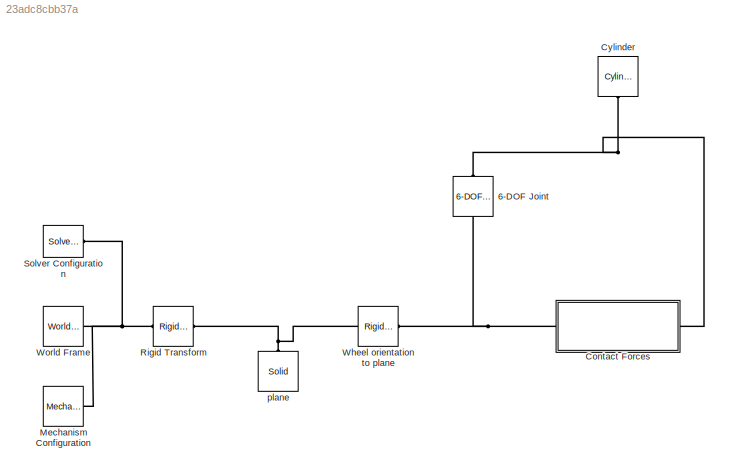
MODEL slx_23adc8cbb37a
KIND model
CONFIG AbsTol = auto
CONFIG EnableMultiTasking = on
CONFIG FixedStep = auto
CONFIG MaxStep = auto
CONFIG MinStep = auto
CONFIG RelTol = 1e-3
CONFIG SampleTimeConstraint = Unconstrained
CONFIG Solver = VariableStepAuto
CONFIG SolverName = VariableStepAuto
CONFIG StartTime = 0.0
CONFIG StopTime = 1
BLOCK [Reference] 6-DOF Joint  REF=sm_lib/Joints/6-DOF Joint
  Ports = [0, 0, 0, 0, 0, 1, 1]
  SourceBlock = sm_lib/Joints/6-DOF Joint
  SourceProductBaseCode = MS
  SourceProductName = Simscape Multibody
  SourceType = 6-DOF Joint
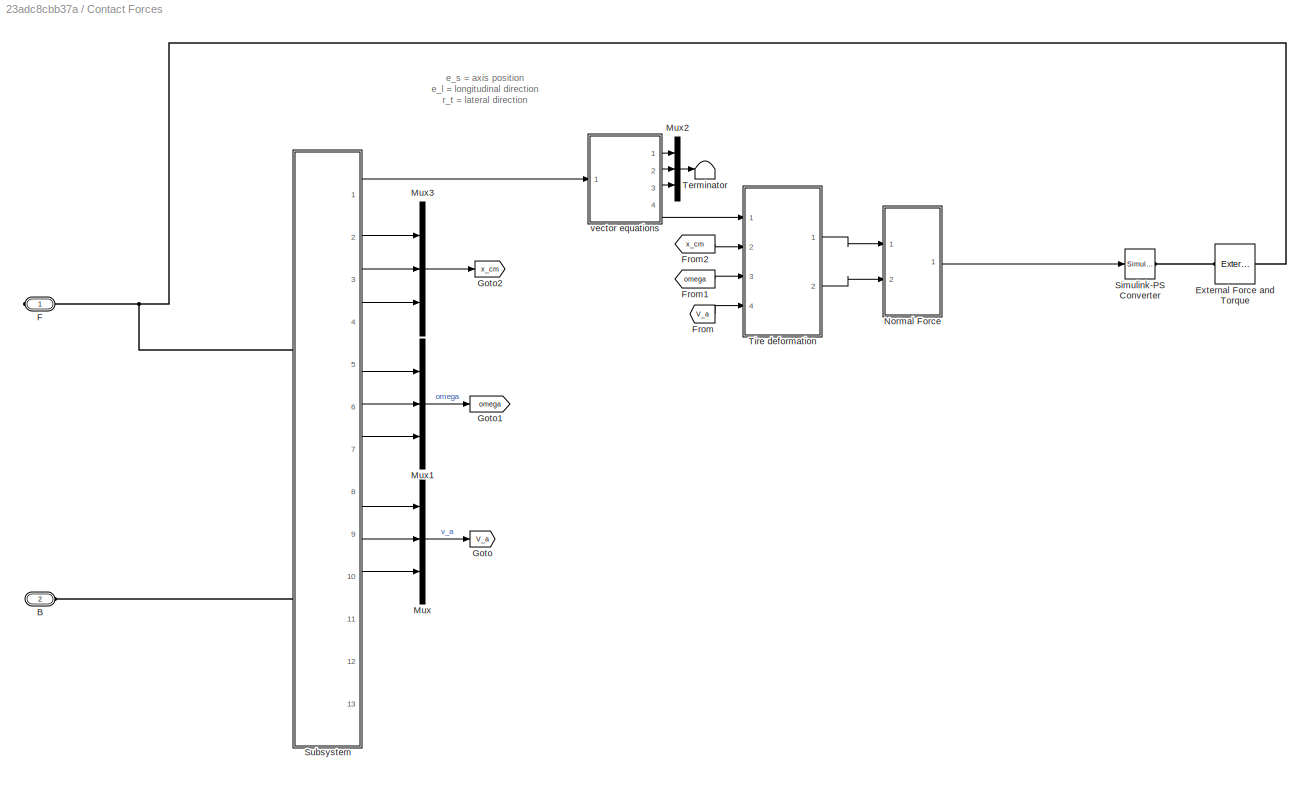
BLOCK [SubSystem] Contact Forces
  Ports = [0, 0, 0, 0, 0, 1, 1]
  RequestExecContextInheritance = off
  Variant = off
BLOCK [PMIOPort] Contact Forces/B
  Port = 2
  Side = Left
BLOCK [Reference] Contact Forces/External Force and Torque  REF=sm_lib/Forces and
Torques/External Force
and Torque
  Ports = [0, 0, 0, 0, 0, 1, 1]
  SourceBlock = sm_lib/Forces and\nTorques/External Force\nand Torque
  SourceProductBaseCode = MS
  SourceProductName = Simscape Multibody
  SourceType = External Force\nand Torque
BLOCK [PMIOPort] Contact Forces/F
  Port = 1
  Side = Right
BLOCK [From] Contact Forces/From
  GotoTag = V_a
BLOCK [From] Contact Forces/From1
  GotoTag = omega
BLOCK [From] Contact Forces/From2
  GotoTag = x_cm
BLOCK [Goto] Contact Forces/Goto
  GotoTag = V_a
BLOCK [Goto] Contact Forces/Goto1
  GotoTag = omega
BLOCK [Goto] Contact Forces/Goto2
  GotoTag = x_cm
BLOCK [Mux] Contact Forces/Mux
  DisplayOption = bar
  Inputs = 3
  Ports = [3, 1]
BLOCK [Mux] Contact Forces/Mux1
  DisplayOption = bar
  Inputs = 3
  Ports = [3, 1]
BLOCK [Mux] Contact Forces/Mux2
  DisplayOption = bar
  Inputs = 3
  Ports = [3, 1]
BLOCK [Mux] Contact Forces/Mux3
  DisplayOption = bar
  Inputs = 3
  Ports = [3, 1]
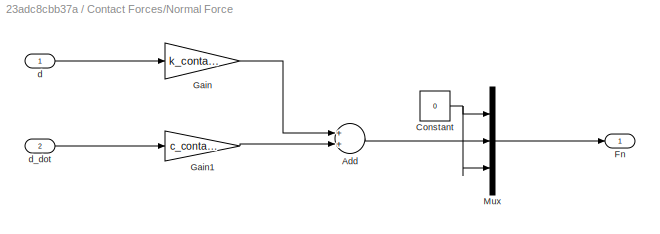
BLOCK [SubSystem] Contact Forces/Normal Force
  Ports = [2, 1]
  RequestExecContextInheritance = off
  Variant = off
BLOCK [Sum] Contact Forces/Normal Force/Add
  InputSameDT = off
  Inputs = 2
  OutDataTypeStr = Inherit: Inherit via internal rule
  Ports = [2, 1]
  SaturateOnIntegerOverflow = off
BLOCK [Constant] Contact Forces/Normal Force/Constant
  Value = 0
BLOCK [Outport] Contact Forces/Normal Force/Fn
  IconDisplay = Port number
BLOCK [Gain] Contact Forces/Normal Force/Gain
  Gain = k_contact
  OutDataTypeStr = Inherit: Inherit via internal rule
  ParamDataTypeStr = Inherit: Inherit via internal rule
  SaturateOnIntegerOverflow = off
BLOCK [Gain] Contact Forces/Normal Force/Gain1
  Gain = c_contact
  OutDataTypeStr = Inherit: Inherit via internal rule
  ParamDataTypeStr = Inherit: Inherit via internal rule
  SaturateOnIntegerOverflow = off
BLOCK [Mux] Contact Forces/Normal Force/Mux
  DisplayOption = bar
  Inputs = 3
  Ports = [3, 1]
BLOCK [Inport] Contact Forces/Normal Force/d
  IconDisplay = Port number
BLOCK [Inport] Contact Forces/Normal Force/d_dot
  IconDisplay = Port number
  Port = 2
BLOCK [Reference] Contact Forces/Simulink-PS Converter  REF=nesl_utility/Simulink-PS
Converter
  Ports = [1, 0, 0, 0, 0, 0, 1]
  SourceBlock = nesl_utility/Simulink-PS\nConverter
  SourceProductBaseCode = SS
  SourceProductName = Simscape
  SourceType = Simulink-PS\nConverter
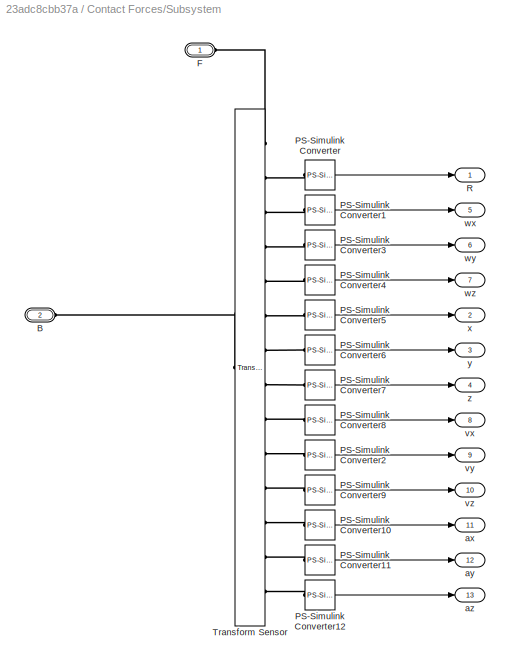
BLOCK [SubSystem] Contact Forces/Subsystem
  Ports = [0, 13, 0, 0, 0, 2]
  RequestExecContextInheritance = off
  Variant = off
BLOCK [PMIOPort] Contact Forces/Subsystem/B
  Port = 2
  Side = Left
BLOCK [PMIOPort] Contact Forces/Subsystem/F
  Port = 1
  Side = Left
BLOCK [Reference] Contact Forces/Subsystem/PS-Simulink Converter  REF=nesl_utility/PS-Simulink
Converter
  Ports = [0, 1, 0, 0, 0, 1]
  SourceBlock = nesl_utility/PS-Simulink\nConverter
  SourceProductBaseCode = SS
  SourceProductName = Simscape
  SourceType = PS-Simulink\nConverter
BLOCK [Reference] Contact Forces/Subsystem/PS-Simulink Converter1  REF=nesl_utility/PS-Simulink
Converter
  Ports = [0, 1, 0, 0, 0, 1]
  SourceBlock = nesl_utility/PS-Simulink\nConverter
  SourceProductBaseCode = SS
  SourceProductName = Simscape
  SourceType = PS-Simulink\nConverter
BLOCK [Reference] Contact Forces/Subsystem/PS-Simulink Converter10  REF=nesl_utility/PS-Simulink
Converter
  Ports = [0, 1, 0, 0, 0, 1]
  SourceBlock = nesl_utility/PS-Simulink\nConverter
  SourceProductBaseCode = SS
  SourceProductName = Simscape
  SourceType = PS-Simulink\nConverter
BLOCK [Reference] Contact Forces/Subsystem/PS-Simulink Converter11  REF=nesl_utility/PS-Simulink
Converter
  Ports = [0, 1, 0, 0, 0, 1]
  SourceBlock = nesl_utility/PS-Simulink\nConverter
  SourceProductBaseCode = SS
  SourceProductName = Simscape
  SourceType = PS-Simulink\nConverter
BLOCK [Reference] Contact Forces/Subsystem/PS-Simulink Converter12  REF=nesl_utility/PS-Simulink
Converter
  Ports = [0, 1, 0, 0, 0, 1]
  SourceBlock = nesl_utility/PS-Simulink\nConverter
  SourceProductBaseCode = SS
  SourceProductName = Simscape
  SourceType = PS-Simulink\nConverter
BLOCK [Reference] Contact Forces/Subsystem/PS-Simulink Converter2  REF=nesl_utility/PS-Simulink
Converter
  Ports = [0, 1, 0, 0, 0, 1]
  SourceBlock = nesl_utility/PS-Simulink\nConverter
  SourceProductBaseCode = SS
  SourceProductName = Simscape
  SourceType = PS-Simulink\nConverter
BLOCK [Reference] Contact Forces/Subsystem/PS-Simulink Converter3  REF=nesl_utility/PS-Simulink
Converter
  Ports = [0, 1, 0, 0, 0, 1]
  SourceBlock = nesl_utility/PS-Simulink\nConverter
  SourceProductBaseCode = SS
  SourceProductName = Simscape
  SourceType = PS-Simulink\nConverter
BLOCK [Reference] Contact Forces/Subsystem/PS-Simulink Converter4  REF=nesl_utility/PS-Simulink
Converter
  Ports = [0, 1, 0, 0, 0, 1]
  SourceBlock = nesl_utility/PS-Simulink\nConverter
  SourceProductBaseCode = SS
  SourceProductName = Simscape
  SourceType = PS-Simulink\nConverter
BLOCK [Reference] Contact Forces/Subsystem/PS-Simulink Converter5  REF=nesl_utility/PS-Simulink
Converter
  Ports = [0, 1, 0, 0, 0, 1]
  SourceBlock = nesl_utility/PS-Simulink\nConverter
  SourceProductBaseCode = SS
  SourceProductName = Simscape
  SourceType = PS-Simulink\nConverter
BLOCK [Reference] Contact Forces/Subsystem/PS-Simulink Converter6  REF=nesl_utility/PS-Simulink
Converter
  Ports = [0, 1, 0, 0, 0, 1]
  SourceBlock = nesl_utility/PS-Simulink\nConverter
  SourceProductBaseCode = SS
  SourceProductName = Simscape
  SourceType = PS-Simulink\nConverter
BLOCK [Reference] Contact Forces/Subsystem/PS-Simulink Converter7  REF=nesl_utility/PS-Simulink
Converter
  Ports = [0, 1, 0, 0, 0, 1]
  SourceBlock = nesl_utility/PS-Simulink\nConverter
  SourceProductBaseCode = SS
  SourceProductName = Simscape
  SourceType = PS-Simulink\nConverter
BLOCK [Reference] Contact Forces/Subsystem/PS-Simulink Converter8  REF=nesl_utility/PS-Simulink
Converter
  Ports = [0, 1, 0, 0, 0, 1]
  SourceBlock = nesl_utility/PS-Simulink\nConverter
  SourceProductBaseCode = SS
  SourceProductName = Simscape
  SourceType = PS-Simulink\nConverter
BLOCK [Reference] Contact Forces/Subsystem/PS-Simulink Converter9  REF=nesl_utility/PS-Simulink
Converter
  Ports = [0, 1, 0, 0, 0, 1]
  SourceBlock = nesl_utility/PS-Simulink\nConverter
  SourceProductBaseCode = SS
  SourceProductName = Simscape
  SourceType = PS-Simulink\nConverter
BLOCK [Outport] Contact Forces/Subsystem/R
  IconDisplay = Port number
BLOCK [Reference] Contact Forces/Subsystem/Transform Sensor  REF=sm_lib/Frames and
Transforms/Transform
Sensor
  Ports = [0, 0, 0, 0, 0, 1, 14]
  SourceBlock = sm_lib/Frames and\nTransforms/Transform\nSensor
  SourceProductBaseCode = MS
  SourceProductName = Simscape Multibody
  SourceType = Transform\nSensor
BLOCK [Outport] Contact Forces/Subsystem/ax
  IconDisplay = Port number
  Port = 11
BLOCK [Outport] Contact Forces/Subsystem/ay
  IconDisplay = Port number
  Port = 12
BLOCK [Outport] Contact Forces/Subsystem/az
  IconDisplay = Port number
  Port = 13
BLOCK [Outport] Contact Forces/Subsystem/vx
  IconDisplay = Port number
  Port = 8
BLOCK [Outport] Contact Forces/Subsystem/vy
  IconDisplay = Port number
  Port = 9
BLOCK [Outport] Contact Forces/Subsystem/vz
  IconDisplay = Port number
  Port = 10
BLOCK [Outport] Contact Forces/Subsystem/wx
  IconDisplay = Port number
  Port = 5
BLOCK [Outport] Contact Forces/Subsystem/wy
  IconDisplay = Port number
  Port = 6
BLOCK [Outport] Contact Forces/Subsystem/wz
  IconDisplay = Port number
  Port = 7
BLOCK [Outport] Contact Forces/Subsystem/x
  IconDisplay = Port number
  Port = 2
BLOCK [Outport] Contact Forces/Subsystem/y
  IconDisplay = Port number
  Port = 3
BLOCK [Outport] Contact Forces/Subsystem/z
  IconDisplay = Port number
  Port = 4
BLOCK [Terminator] Contact Forces/Terminator
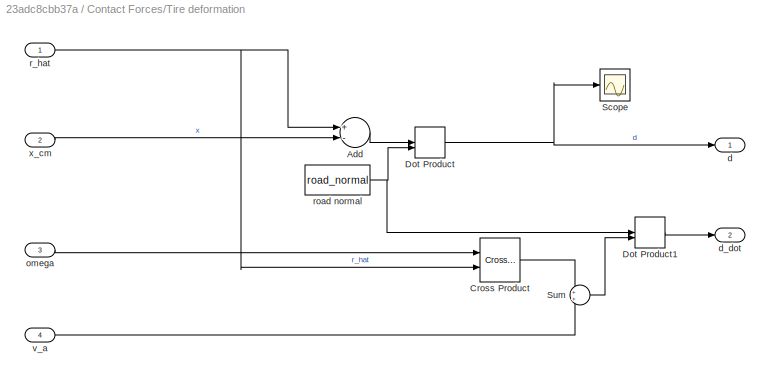
BLOCK [SubSystem] Contact Forces/Tire deformation
  Ports = [4, 2]
  RequestExecContextInheritance = off
  Variant = off
BLOCK [Sum] Contact Forces/Tire deformation/Add
  InputSameDT = off
  Inputs = +-
  OutDataTypeStr = Inherit: Inherit via internal rule
  Ports = [2, 1]
  SaturateOnIntegerOverflow = off
BLOCK [Reference] Contact Forces/Tire deformation/Cross Product  REF=Contact_Forces_Lib/Math/Cross
Product
  Ports = [2, 1]
  SourceBlock = Contact_Forces_Lib/Math/Cross\nProduct
  SourceType = SubSystem
BLOCK [DotProduct] Contact Forces/Tire deformation/Dot Product
  OutDataTypeStr = Inherit: Inherit via internal rule
BLOCK [DotProduct] Contact Forces/Tire deformation/Dot Product1
  OutDataTypeStr = Inherit: Inherit via internal rule
BLOCK [Scope] Contact Forces/Tire deformation/Scope
  NumInputPorts = 1
  Ports = [1]
  ScopeSpecificationString = Simulink.scopes.TimeScopeBlockCfg('CurrentConfiguration', extmgr.ConfigurationSet(extmgr.Configuration('Core','General UI',true),extmgr.Configuration('Core','Source UI',true),extmgr.Configuration('Sources','WiredSimulink',true),extmgr.Configuration('Visuals','Time Domain',true,'SerializedDisplays',{struct('MinYLimReal','-0.625','MaxYLimReal','0.62503','YLabelReal','','MinYLimMag','0.00000','MaxYLi...<+1361ch>
BLOCK [Sum] Contact Forces/Tire deformation/Sum
  IconShape = round
  InputSameDT = off
  OutDataTypeStr = Inherit: Inherit via internal rule
  Ports = [2, 1]
  SaturateOnIntegerOverflow = off
BLOCK [Outport] Contact Forces/Tire deformation/d
  IconDisplay = Port number
BLOCK [Outport] Contact Forces/Tire deformation/d_dot
  IconDisplay = Port number
  Port = 2
BLOCK [Inport] Contact Forces/Tire deformation/omega
  IconDisplay = Port number
  Port = 3
BLOCK [Inport] Contact Forces/Tire deformation/r_hat
  IconDisplay = Port number
BLOCK [Constant] Contact Forces/Tire deformation/road normal
  Value = road_normal
BLOCK [Inport] Contact Forces/Tire deformation/v_a
  IconDisplay = Port number
  Port = 4
BLOCK [Inport] Contact Forces/Tire deformation/x_cm
  IconDisplay = Port number
  Port = 2
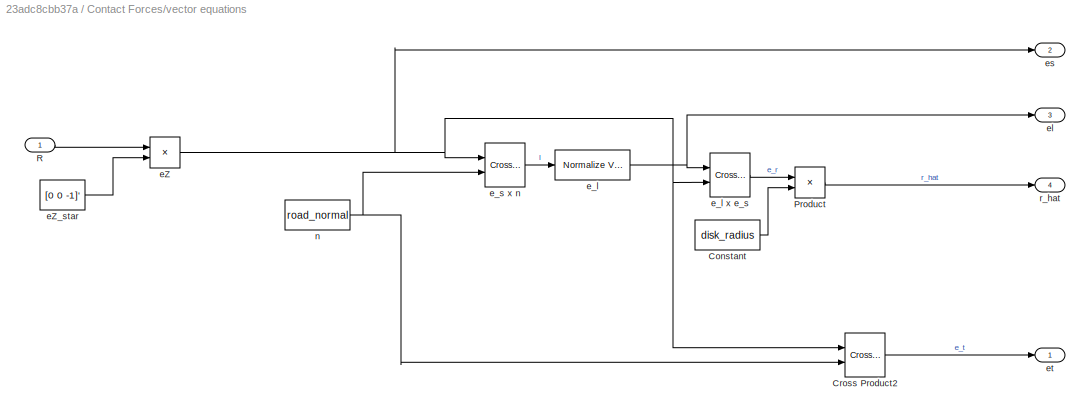
BLOCK [SubSystem] Contact Forces/vector equations
  Ports = [1, 4]
  RequestExecContextInheritance = off
  Variant = off
BLOCK [Constant] Contact Forces/vector equations/Constant
  Value = disk_radius
BLOCK [Reference] Contact Forces/vector equations/Cross Product2  REF=Contact_Forces_Lib/Math/Cross
Product
  Ports = [2, 1]
  SourceBlock = Contact_Forces_Lib/Math/Cross\nProduct
  SourceType = SubSystem
BLOCK [Product] Contact Forces/vector equations/Product
  InputSameDT = off
  OutDataTypeStr = Inherit: Inherit via internal rule
  Ports = [2, 1]
  RndMeth = Floor
  SaturateOnIntegerOverflow = off
BLOCK [Inport] Contact Forces/vector equations/R
  IconDisplay = Port number
BLOCK [Product] Contact Forces/vector equations/eZ
  InputSameDT = off
  Multiplication = Matrix(*)
  OutDataTypeStr = Inherit: Inherit via internal rule
  Ports = [2, 1]
  RndMeth = Floor
  SaturateOnIntegerOverflow = off
BLOCK [Constant] Contact Forces/vector equations/eZ_star
  Value = [0 0 -1]'
BLOCK [Reference] Contact Forces/vector equations/e_l  REF=vrlib/Utilities/Normalize Vector
  Ports = [1, 1]
  SourceBlock = vrlib/Utilities/Normalize Vector
  SourceProductBaseCode = VR
  SourceProductName = Simulink 3D Animation
  SourceType = Normalize Vector
BLOCK [Reference] Contact Forces/vector equations/e_l x e_s  REF=Contact_Forces_Lib/Math/Cross
Product
  Ports = [2, 1]
  SourceBlock = Contact_Forces_Lib/Math/Cross\nProduct
  SourceType = SubSystem
BLOCK [Reference] Contact Forces/vector equations/e_s x n  REF=Contact_Forces_Lib/Math/Cross
Product
  Ports = [2, 1]
  SourceBlock = Contact_Forces_Lib/Math/Cross\nProduct
  SourceType = SubSystem
BLOCK [Outport] Contact Forces/vector equations/el
  IconDisplay = Port number
  Port = 3
BLOCK [Outport] Contact Forces/vector equations/es
  IconDisplay = Port number
  Port = 2
BLOCK [Outport] Contact Forces/vector equations/et
  IconDisplay = Port number
BLOCK [Constant] Contact Forces/vector equations/n
  Value = road_normal
BLOCK [Outport] Contact Forces/vector equations/r_hat
  IconDisplay = Port number
  Port = 4
BLOCK [Reference] Cylinder  REF=Parts_Lib/Cylinder
  Ports = [0, 0, 0, 0, 0, 1]
  SourceBlock = Parts_Lib/Cylinder
  SourceType = Solid Cylinder with Markings
  Tag = CustomStyle
BLOCK [Reference] Mechanism Configuration  REF=sm_lib/Utilities/Mechanism
Configuration
  Ports = [0, 0, 0, 0, 0, 0, 1]
  SourceBlock = sm_lib/Utilities/Mechanism\nConfiguration
  SourceProductBaseCode = MS
  SourceProductName = Simscape Multibody
  SourceType = Mechanism\nConfiguration
BLOCK [Reference] Rigid Transform  REF=sm_lib/Frames and
Transforms/Rigid
Transform
  Ports = [0, 0, 0, 0, 0, 1, 1]
  SourceBlock = sm_lib/Frames and\nTransforms/Rigid\nTransform
  SourceProductBaseCode = MS
  SourceProductName = Simscape Multibody
  SourceType = Rigid\nTransform
BLOCK [Reference] Solver Configuration  REF=nesl_utility/Solver
Configuration
  Ports = [0, 0, 0, 0, 0, 0, 1]
  SourceBlock = nesl_utility/Solver\nConfiguration
  SourceProductBaseCode = SS
  SourceProductName = Simscape
  SourceType = Solver\nConfiguration
BLOCK [Reference] Wheel orientation to plane  REF=sm_lib/Frames and
Transforms/Rigid
Transform
  Ports = [0, 0, 0, 0, 0, 1, 1]
  SourceBlock = sm_lib/Frames and\nTransforms/Rigid\nTransform
  SourceProductBaseCode = MS
  SourceProductName = Simscape Multibody
  SourceType = Rigid\nTransform
BLOCK [Reference] World Frame  REF=sm_lib/Frames and
Transforms/World Frame
  Ports = [0, 0, 0, 0, 0, 0, 1]
  SourceBlock = sm_lib/Frames and\nTransforms/World Frame
  SourceProductBaseCode = MS
  SourceProductName = Simscape Multibody
  SourceType = World Frame
BLOCK [Reference] plane  REF=sm_lib/Body Elements/Solid
  Ports = [0, 0, 0, 0, 0, 0, 1]
  SourceBlock = sm_lib/Body Elements/Solid
  SourceProductBaseCode = MS
  SourceProductName = Simscape Multibody
  SourceType = Solid
ANNOTATION Contact Forces: e_s = axis position e_l = longitudinal direction r_t = lateral direction
LINE Contact Forces/From1:1 -> Contact Forces/Tire deformation:3
LINE Contact Forces/From2:1 -> Contact Forces/Tire deformation:2
LINE Contact Forces/From:1 -> Contact Forces/Tire deformation:4
LINE Contact Forces/Mux1:1 -> Contact Forces/Goto1:1
LINE Contact Forces/Mux2:1 -> Contact Forces/Terminator:1
LINE Contact Forces/Mux3:1 -> Contact Forces/Goto2:1
LINE Contact Forces/Mux:1 -> Contact Forces/Goto:1
LINE Contact Forces/Normal Force/Add:1 -> Contact Forces/Normal Force/Mux:2
NET Contact Forces/Normal Force/Constant:1 -> Contact Forces/Normal Force/Mux:1, Contact Forces/Normal Force/Mux:3
LINE Contact Forces/Normal Force/Gain1:1 -> Contact Forces/Normal Force/Add:2
LINE Contact Forces/Normal Force/Gain:1 -> Contact Forces/Normal Force/Add:1
LINE Contact Forces/Normal Force/Mux:1 -> Contact Forces/Normal Force/Fn:1
LINE Contact Forces/Normal Force/d:1 -> Contact Forces/Normal Force/Gain:1
LINE Contact Forces/Normal Force/d_dot:1 -> Contact Forces/Normal Force/Gain1:1
LINE Contact Forces/Normal Force:1 -> Contact Forces/Simulink-PS Converter:1
LINE Contact Forces/Subsystem/PS-Simulink Converter10:1 -> Contact Forces/Subsystem/ax:1
LINE Contact Forces/Subsystem/PS-Simulink Converter11:1 -> Contact Forces/Subsystem/ay:1
LINE Contact Forces/Subsystem/PS-Simulink Converter12:1 -> Contact Forces/Subsystem/az:1
LINE Contact Forces/Subsystem/PS-Simulink Converter1:1 -> Contact Forces/Subsystem/wx:1
LINE Contact Forces/Subsystem/PS-Simulink Converter2:1 -> Contact Forces/Subsystem/vy:1
LINE Contact Forces/Subsystem/PS-Simulink Converter3:1 -> Contact Forces/Subsystem/wy:1
LINE Contact Forces/Subsystem/PS-Simulink Converter4:1 -> Contact Forces/Subsystem/wz:1
LINE Contact Forces/Subsystem/PS-Simulink Converter5:1 -> Contact Forces/Subsystem/x:1
LINE Contact Forces/Subsystem/PS-Simulink Converter6:1 -> Contact Forces/Subsystem/y:1
LINE Contact Forces/Subsystem/PS-Simulink Converter7:1 -> Contact Forces/Subsystem/z:1
LINE Contact Forces/Subsystem/PS-Simulink Converter8:1 -> Contact Forces/Subsystem/vx:1
LINE Contact Forces/Subsystem/PS-Simulink Converter9:1 -> Contact Forces/Subsystem/vz:1
LINE Contact Forces/Subsystem/PS-Simulink Converter:1 -> Contact Forces/Subsystem/R:1
LINE Contact Forces/Subsystem:1 -> Contact Forces/vector equations:1
LINE Contact Forces/Subsystem:10 -> Contact Forces/Mux:3
LINE Contact Forces/Subsystem:2 -> Contact Forces/Mux3:1
LINE Contact Forces/Subsystem:3 -> Contact Forces/Mux3:2
LINE Contact Forces/Subsystem:4 -> Contact Forces/Mux3:3
LINE Contact Forces/Subsystem:5 -> Contact Forces/Mux1:1
LINE Contact Forces/Subsystem:6 -> Contact Forces/Mux1:2
LINE Contact Forces/Subsystem:7 -> Contact Forces/Mux1:3
LINE Contact Forces/Subsystem:8 -> Contact Forces/Mux:1
LINE Contact Forces/Subsystem:9 -> Contact Forces/Mux:2
LINE Contact Forces/Tire deformation/Add:1 -> Contact Forces/Tire deformation/Dot Product:1
LINE Contact Forces/Tire deformation/Cross Product:1 -> Contact Forces/Tire deformation/Sum:1
LINE Contact Forces/Tire deformation/Dot Product1:1 -> Contact Forces/Tire deformation/d_dot:1
NET Contact Forces/Tire deformation/Dot Product:1 -> Contact Forces/Tire deformation/Scope:1, Contact Forces/Tire deformation/d:1
LINE Contact Forces/Tire deformation/Sum:1 -> Contact Forces/Tire deformation/Dot Product1:2
LINE Contact Forces/Tire deformation/omega:1 -> Contact Forces/Tire deformation/Cross Product:1
NET Contact Forces/Tire deformation/r_hat:1 -> Contact Forces/Tire deformation/Add:1, Contact Forces/Tire deformation/Cross Product:2
NET Contact Forces/Tire deformation/road normal:1 -> Contact Forces/Tire deformation/Dot Product1:1, Contact Forces/Tire deformation/Dot Product:2
LINE Contact Forces/Tire deformation/v_a:1 -> Contact Forces/Tire deformation/Sum:2
LINE Contact Forces/Tire deformation/x_cm:1 -> Contact Forces/Tire deformation/Add:2
LINE Contact Forces/Tire deformation:1 -> Contact Forces/Normal Force:1
LINE Contact Forces/Tire deformation:2 -> Contact Forces/Normal Force:2
LINE Contact Forces/vector equations/Constant:1 -> Contact Forces/vector equations/Product:2
LINE Contact Forces/vector equations/Cross Product2:1 -> Contact Forces/vector equations/et:1
LINE Contact Forces/vector equations/Product:1 -> Contact Forces/vector equations/r_hat:1
LINE Contact Forces/vector equations/R:1 -> Contact Forces/vector equations/eZ:1
NET Contact Forces/vector equations/eZ:1 -> Contact Forces/vector equations/Cross Product2:1, Contact Forces/vector equations/e_l x e_s:2, Contact Forces/vector equations/e_s x n:1, Contact Forces/vector equations/es:1
LINE Contact Forces/vector equations/eZ_star:1 -> Contact Forces/vector equations/eZ:2
LINE Contact Forces/vector equations/e_l x e_s:1 -> Contact Forces/vector equations/Product:1
NET Contact Forces/vector equations/e_l:1 -> Contact Forces/vector equations/e_l x e_s:1, Contact Forces/vector equations/el:1
LINE Contact Forces/vector equations/e_s x n:1 -> Contact Forces/vector equations/e_l:1
NET Contact Forces/vector equations/n:1 -> Contact Forces/vector equations/Cross Product2:2, Contact Forces/vector equations/e_s x n:2
LINE Contact Forces/vector equations:1 -> Contact Forces/Mux2:1
LINE Contact Forces/vector equations:2 -> Contact Forces/Mux2:2
LINE Contact Forces/vector equations:3 -> Contact Forces/Mux2:3
LINE Contact Forces/vector equations:4 -> Contact Forces/Tire deformation:1
PNET net1: 6-DOF Joint:LConn1 -- Contact Forces:LConn1 -- Wheel orientation to plane:RConn1
PNET net2: 6-DOF Joint:RConn1 -- Contact Forces:RConn1 -- Cylinder:LConn1
PLINE Contact Forces/B:RConn1 -- Contact Forces/Subsystem:LConn2
PLINE Contact Forces/External Force and Torque:LConn1 -- Contact Forces/Simulink-PS Converter:RConn1
PNET net3: Contact Forces/External Force and Torque:RConn1 -- Contact Forces/F:RConn1 -- Contact Forces/Subsystem:LConn1
PLINE Contact Forces/Subsystem/B:RConn1 -- Contact Forces/Subsystem/Transform Sensor:LConn1
PLINE Contact Forces/Subsystem/F:RConn1 -- Contact Forces/Subsystem/Transform Sensor:RConn1
PLINE Contact Forces/Subsystem/PS-Simulink Converter10:LConn1 -- Contact Forces/Subsystem/Transform Sensor:RConn12
PLINE Contact Forces/Subsystem/PS-Simulink Converter11:LConn1 -- Contact Forces/Subsystem/Transform Sensor:RConn13
PLINE Contact Forces/Subsystem/PS-Simulink Converter12:LConn1 -- Contact Forces/Subsystem/Transform Sensor:RConn14
PLINE Contact Forces/Subsystem/PS-Simulink Converter1:LConn1 -- Contact Forces/Subsystem/Transform Sensor:RConn3
PLINE Contact Forces/Subsystem/PS-Simulink Converter2:LConn1 -- Contact Forces/Subsystem/Transform Sensor:RConn10
PLINE Contact Forces/Subsystem/PS-Simulink Converter3:LConn1 -- Contact Forces/Subsystem/Transform Sensor:RConn4
PLINE Contact Forces/Subsystem/PS-Simulink Converter4:LConn1 -- Contact Forces/Subsystem/Transform Sensor:RConn5
PLINE Contact Forces/Subsystem/PS-Simulink Converter5:LConn1 -- Contact Forces/Subsystem/Transform Sensor:RConn6
PLINE Contact Forces/Subsystem/PS-Simulink Converter6:LConn1 -- Contact Forces/Subsystem/Transform Sensor:RConn7
PLINE Contact Forces/Subsystem/PS-Simulink Converter7:LConn1 -- Contact Forces/Subsystem/Transform Sensor:RConn8
PLINE Contact Forces/Subsystem/PS-Simulink Converter8:LConn1 -- Contact Forces/Subsystem/Transform Sensor:RConn9
PLINE Contact Forces/Subsystem/PS-Simulink Converter9:LConn1 -- Contact Forces/Subsystem/Transform Sensor:RConn11
PLINE Contact Forces/Subsystem/PS-Simulink Converter:LConn1 -- Contact Forces/Subsystem/Transform Sensor:RConn2
PNET net4: Mechanism Configuration:RConn1 -- Rigid Transform:LConn1 -- Solver Configuration:RConn1 -- World Frame:RConn1
PNET net5: Rigid Transform:RConn1 -- Wheel orientation to plane:LConn1 -- plane:RConn1
note: NET lines group one-source signal fan-out (src -> all destinations, sorted); 1:1 wires keep LINE; PNET lines group multi-terminal physical nets as a canonical sorted terminal list (undirected conserving connections); 2-terminal nets keep the pairwise PLINE form
